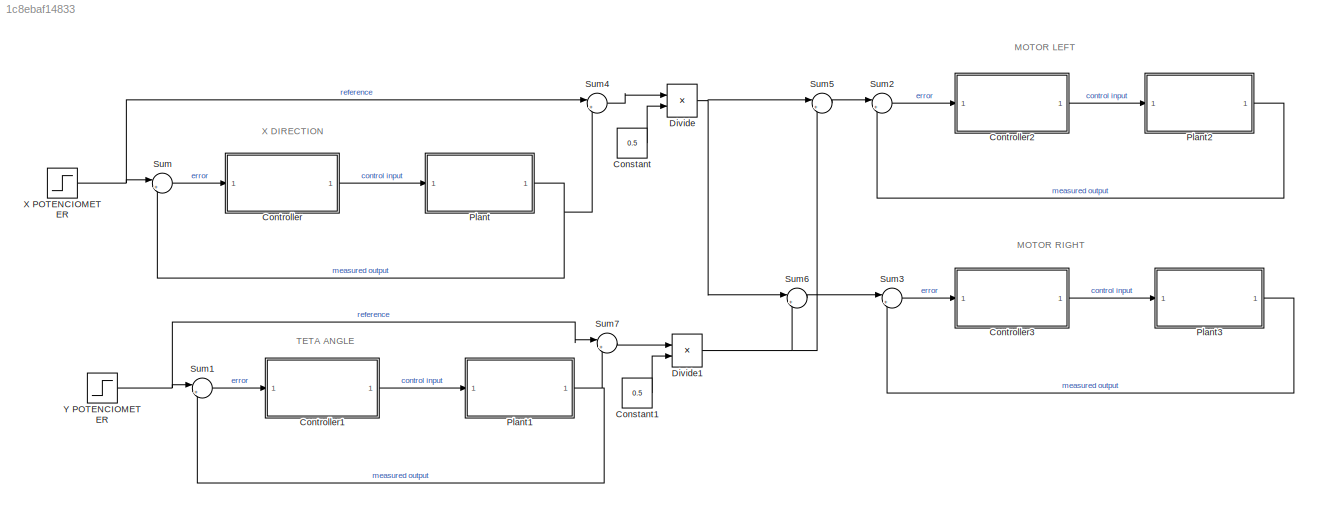
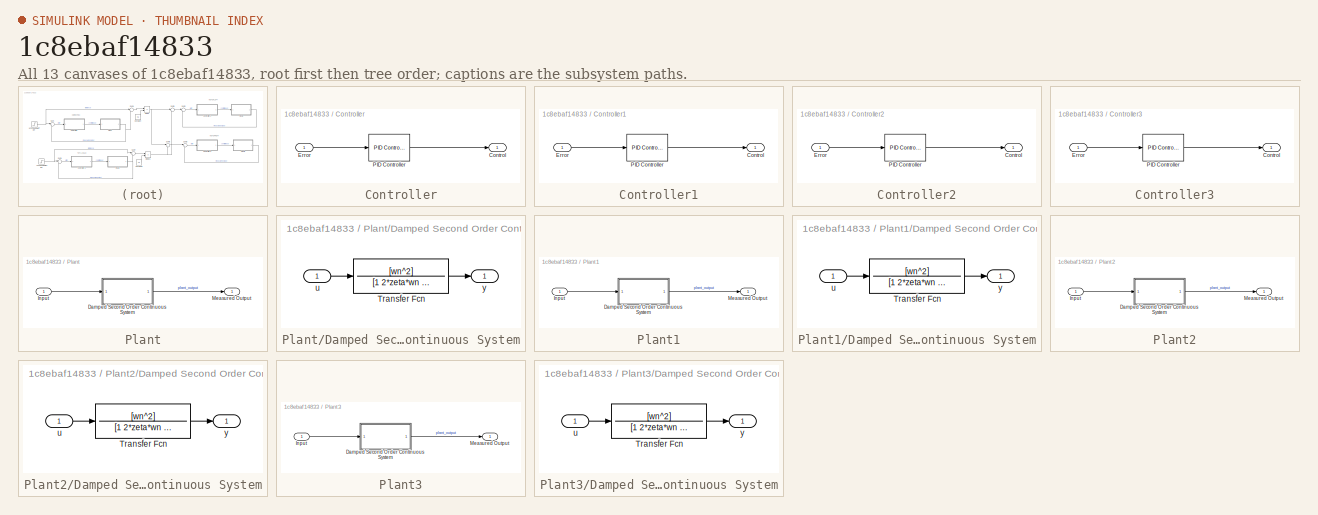
[diagram: thumbnail index - all 13 canvases of the model, root first then tree order]
MODEL slx_1c8ebaf14833
KIND model
CONFIG AbsTol = auto
CONFIG FixedStep = auto
CONFIG MaxStep = 0.01
CONFIG MinStep = auto
CONFIG RelTol = 1e-4
CONFIG SampleTimeConstraint = Unconstrained
CONFIG Solver = VariableStepAuto
CONFIG SolverMode = Auto
CONFIG SolverName = VariableStepAuto
CONFIG StartTime = 0.0
CONFIG StopTime = 2
BLOCK [Constant] Constant
  Value = 0.5
BLOCK [Constant] Constant1
  Value = 0.5
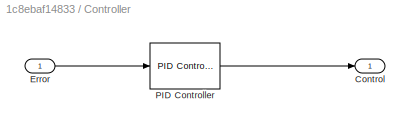
BLOCK [SubSystem] Controller
  Ports = [1, 1]
  RequestExecContextInheritance = off
  Variant = off
BLOCK [Outport] Controller/Control
  IconDisplay = Port number
BLOCK [Inport] Controller/Error
  IconDisplay = Port number
BLOCK [Reference] Controller/PID Controller  REF=simulink/Continuous/PID Controller
  Ports = [1, 1]
  SourceBlock = simulink/Continuous/PID Controller
  SourceType = PID 1dof
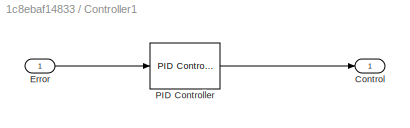
BLOCK [SubSystem] Controller1
  Ports = [1, 1]
  RequestExecContextInheritance = off
  Variant = off
BLOCK [Outport] Controller1/Control
  IconDisplay = Port number
BLOCK [Inport] Controller1/Error
  IconDisplay = Port number
BLOCK [Reference] Controller1/PID Controller  REF=simulink/Continuous/PID Controller
  Ports = [1, 1]
  SourceBlock = simulink/Continuous/PID Controller
  SourceType = PID 1dof
BLOCK [SubSystem] Controller2
  Ports = [1, 1]
  RequestExecContextInheritance = off
  Variant = off
BLOCK [Outport] Controller2/Control
  IconDisplay = Port number
BLOCK [Inport] Controller2/Error
  IconDisplay = Port number
BLOCK [Reference] Controller2/PID Controller  REF=simulink/Continuous/PID Controller
  Ports = [1, 1]
  SourceBlock = simulink/Continuous/PID Controller
  SourceType = PID 1dof
BLOCK [SubSystem] Controller3
  Ports = [1, 1]
  RequestExecContextInheritance = off
  Variant = off
BLOCK [Outport] Controller3/Control
  IconDisplay = Port number
BLOCK [Inport] Controller3/Error
  IconDisplay = Port number
BLOCK [Reference] Controller3/PID Controller  REF=simulink/Continuous/PID Controller
  Ports = [1, 1]
  SourceBlock = simulink/Continuous/PID Controller
  SourceType = PID 1dof
BLOCK [Product] Divide
  InputSameDT = off
  Inputs = */
  OutDataTypeStr = Inherit: Inherit via internal rule
  Ports = [2, 1]
  RndMeth = Floor
  SaturateOnIntegerOverflow = off
BLOCK [Product] Divide1
  InputSameDT = off
  Inputs = */
  OutDataTypeStr = Inherit: Inherit via internal rule
  Ports = [2, 1]
  RndMeth = Floor
  SaturateOnIntegerOverflow = off
BLOCK [SubSystem] Plant
  Ports = [1, 1]
  RequestExecContextInheritance = off
  Variant = off
BLOCK [SubSystem] Plant/Damped Second Order Continuous System
  Ports = [1, 1]
  RequestExecContextInheritance = off
  Variant = off
BLOCK [TransferFcn] Plant/Damped Second Order Continuous System/Transfer Fcn
  Denominator = [1 2*zeta*wn wn^2]
  Numerator = [wn^2]
BLOCK [Inport] Plant/Damped Second Order Continuous System/u
  IconDisplay = Port number
BLOCK [Outport] Plant/Damped Second Order Continuous System/y
  IconDisplay = Port number
BLOCK [Inport] Plant/Input
  IconDisplay = Port number
BLOCK [Outport] Plant/Measured Output
  IconDisplay = Port number
BLOCK [SubSystem] Plant1
  Ports = [1, 1]
  RequestExecContextInheritance = off
  Variant = off
BLOCK [SubSystem] Plant1/Damped Second Order Continuous System
  Ports = [1, 1]
  RequestExecContextInheritance = off
  Variant = off
BLOCK [TransferFcn] Plant1/Damped Second Order Continuous System/Transfer Fcn
  Denominator = [1 2*zeta*wn wn^2]
  Numerator = [wn^2]
BLOCK [Inport] Plant1/Damped Second Order Continuous System/u
  IconDisplay = Port number
BLOCK [Outport] Plant1/Damped Second Order Continuous System/y
  IconDisplay = Port number
BLOCK [Inport] Plant1/Input
  IconDisplay = Port number
BLOCK [Outport] Plant1/Measured Output
  IconDisplay = Port number
BLOCK [SubSystem] Plant2
  Ports = [1, 1]
  RequestExecContextInheritance = off
  Variant = off
BLOCK [SubSystem] Plant2/Damped Second Order Continuous System
  Ports = [1, 1]
  RequestExecContextInheritance = off
  Variant = off
BLOCK [TransferFcn] Plant2/Damped Second Order Continuous System/Transfer Fcn
  Denominator = [1 2*zeta*wn wn^2]
  Numerator = [wn^2]
BLOCK [Inport] Plant2/Damped Second Order Continuous System/u
  IconDisplay = Port number
BLOCK [Outport] Plant2/Damped Second Order Continuous System/y
  IconDisplay = Port number
BLOCK [Inport] Plant2/Input
  IconDisplay = Port number
BLOCK [Outport] Plant2/Measured Output
  IconDisplay = Port number
BLOCK [SubSystem] Plant3
  Ports = [1, 1]
  RequestExecContextInheritance = off
  Variant = off
BLOCK [SubSystem] Plant3/Damped Second Order Continuous System
  Ports = [1, 1]
  RequestExecContextInheritance = off
  Variant = off
BLOCK [TransferFcn] Plant3/Damped Second Order Continuous System/Transfer Fcn
  Denominator = [1 2*zeta*wn wn^2]
  Numerator = [wn^2]
BLOCK [Inport] Plant3/Damped Second Order Continuous System/u
  IconDisplay = Port number
BLOCK [Outport] Plant3/Damped Second Order Continuous System/y
  IconDisplay = Port number
BLOCK [Inport] Plant3/Input
  IconDisplay = Port number
BLOCK [Outport] Plant3/Measured Output
  IconDisplay = Port number
BLOCK [Sum] Sum
  IconShape = round
  InputSameDT = off
  Inputs = |+-
  OutDataTypeStr = Inherit: Inherit via internal rule
  Ports = [2, 1]
  SaturateOnIntegerOverflow = off
BLOCK [Sum] Sum1
  IconShape = round
  InputSameDT = off
  Inputs = |+-
  OutDataTypeStr = Inherit: Inherit via internal rule
  Ports = [2, 1]
  SaturateOnIntegerOverflow = off
BLOCK [Sum] Sum2
  IconShape = round
  InputSameDT = off
  Inputs = |+-
  OutDataTypeStr = Inherit: Inherit via internal rule
  Ports = [2, 1]
  SaturateOnIntegerOverflow = off
BLOCK [Sum] Sum3
  IconShape = round
  InputSameDT = off
  Inputs = |+-
  OutDataTypeStr = Inherit: Inherit via internal rule
  Ports = [2, 1]
  SaturateOnIntegerOverflow = off
BLOCK [Sum] Sum4
  IconShape = round
  InputSameDT = off
  Inputs = |+-
  OutDataTypeStr = Inherit: Inherit via internal rule
  Ports = [2, 1]
  SaturateOnIntegerOverflow = off
BLOCK [Sum] Sum5
  IconShape = round
  InputSameDT = off
  Inputs = |++
  OutDataTypeStr = Inherit: Inherit via internal rule
  Ports = [2, 1]
  SaturateOnIntegerOverflow = off
BLOCK [Sum] Sum6
  IconShape = round
  InputSameDT = off
  Inputs = |+-
  OutDataTypeStr = Inherit: Inherit via internal rule
  Ports = [2, 1]
  SaturateOnIntegerOverflow = off
BLOCK [Sum] Sum7
  IconShape = round
  InputSameDT = off
  Inputs = |+-
  OutDataTypeStr = Inherit: Inherit via internal rule
  Ports = [2, 1]
  SaturateOnIntegerOverflow = off
BLOCK [Step] X POTENCIOMETER
  SampleTime = 0
BLOCK [Step] Y POTENCIOMETER
  SampleTime = 0
ANNOTATION (root): MOTOR LEFT
ANNOTATION (root): MOTOR RIGHT
ANNOTATION (root): TETA ANGLE
ANNOTATION (root): X DIRECTION
LINE Constant1:1 -> Divide1:2
LINE Constant:1 -> Divide:2
LINE Controller/Error:1 -> Controller/PID Controller:1
LINE Controller/PID Controller:1 -> Controller/Control:1
LINE Controller1/Error:1 -> Controller1/PID Controller:1
LINE Controller1/PID Controller:1 -> Controller1/Control:1
LINE Controller1:1 -> Plant1:1
LINE Controller2/Error:1 -> Controller2/PID Controller:1
LINE Controller2/PID Controller:1 -> Controller2/Control:1
LINE Controller2:1 -> Plant2:1
LINE Controller3/Error:1 -> Controller3/PID Controller:1
LINE Controller3/PID Controller:1 -> Controller3/Control:1
LINE Controller3:1 -> Plant3:1
LINE Controller:1 -> Plant:1
NET Divide1:1 -> Sum5:2, Sum6:2
NET Divide:1 -> Sum5:1, Sum6:1
LINE Plant/Damped Second Order Continuous System/Transfer Fcn:1 -> Plant/Damped Second Order Continuous System/y:1
LINE Plant/Damped Second Order Continuous System/u:1 -> Plant/Damped Second Order Continuous System/Transfer Fcn:1
LINE Plant/Damped Second Order Continuous System:1 -> Plant/Measured Output:1
LINE Plant/Input:1 -> Plant/Damped Second Order Continuous System:1
LINE Plant1/Damped Second Order Continuous System/Transfer Fcn:1 -> Plant1/Damped Second Order Continuous System/y:1
LINE Plant1/Damped Second Order Continuous System/u:1 -> Plant1/Damped Second Order Continuous System/Transfer Fcn:1
LINE Plant1/Damped Second Order Continuous System:1 -> Plant1/Measured Output:1
LINE Plant1/Input:1 -> Plant1/Damped Second Order Continuous System:1
NET Plant1:1 -> Sum1:2, Sum7:2
LINE Plant2/Damped Second Order Continuous System/Transfer Fcn:1 -> Plant2/Damped Second Order Continuous System/y:1
LINE Plant2/Damped Second Order Continuous System/u:1 -> Plant2/Damped Second Order Continuous System/Transfer Fcn:1
LINE Plant2/Damped Second Order Continuous System:1 -> Plant2/Measured Output:1
LINE Plant2/Input:1 -> Plant2/Damped Second Order Continuous System:1
LINE Plant2:1 -> Sum2:2
LINE Plant3/Damped Second Order Continuous System/Transfer Fcn:1 -> Plant3/Damped Second Order Continuous System/y:1
LINE Plant3/Damped Second Order Continuous System/u:1 -> Plant3/Damped Second Order Continuous System/Transfer Fcn:1
LINE Plant3/Damped Second Order Continuous System:1 -> Plant3/Measured Output:1
LINE Plant3/Input:1 -> Plant3/Damped Second Order Continuous System:1
LINE Plant3:1 -> Sum3:2
NET Plant:1 -> Sum4:2, Sum:2
LINE Sum1:1 -> Controller1:1
LINE Sum2:1 -> Controller2:1
LINE Sum3:1 -> Controller3:1
LINE Sum4:1 -> Divide:1
LINE Sum5:1 -> Sum2:1
LINE Sum6:1 -> Sum3:1
LINE Sum7:1 -> Divide1:1
LINE Sum:1 -> Controller:1
NET X POTENCIOMETER:1 -> Sum4:1, Sum:1
NET Y POTENCIOMETER:1 -> Sum1:1, Sum7:1
note: NET lines group one-source signal fan-out (src -> all destinations, sorted); 1:1 wires keep LINE
